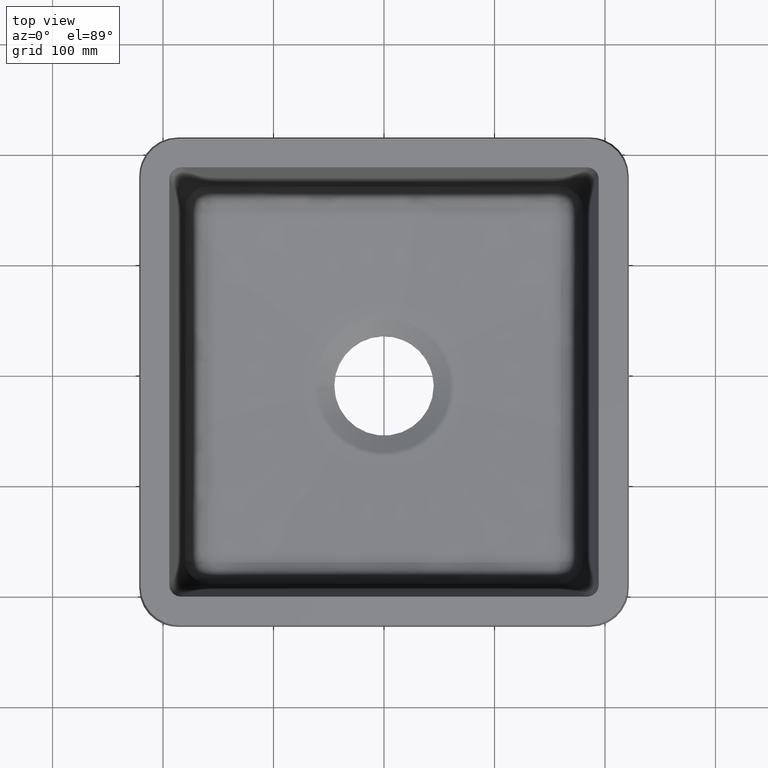
[diagram: clean part render]
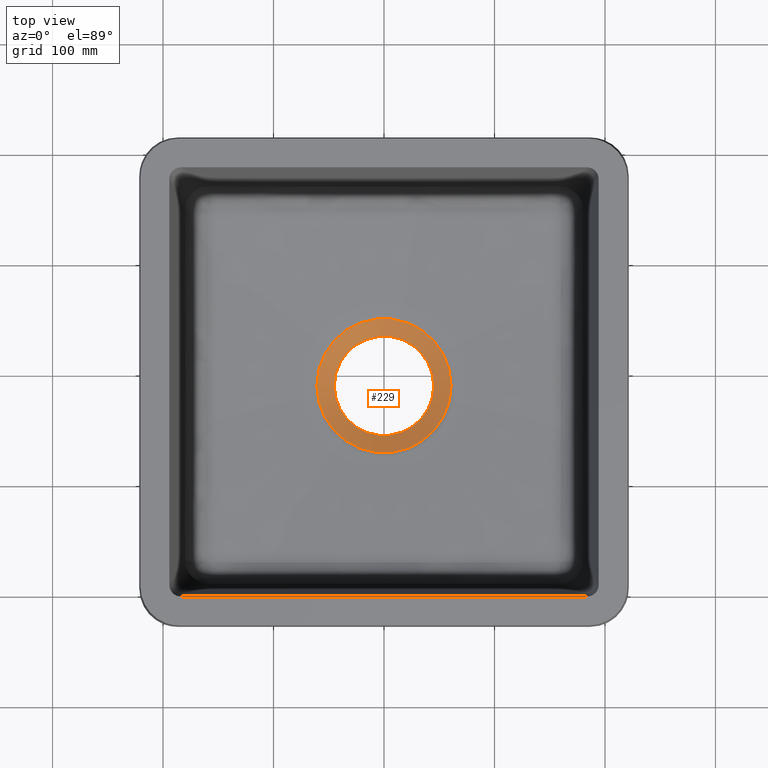
[diagram: same view with one face highlighted and labeled with its STEP entity id]
A machine part, top view. The second image highlights one B-rep face of the part: STEP entity #229.
In plain terms, the highlighted conical surface has half-angle 60 deg.
Its self-contained STEP definition (entity closure, byte-faithful):
#43=CONICAL_SURFACE('',#1388,45.,59.9999999999999);
#164=FACE_BOUND('',#442,.T.);
#165=FACE_BOUND('',#443,.T.);
#229=ADVANCED_FACE('',(#164,#165),#43,.F.);
#442=EDGE_LOOP('',(#801));
#443=EDGE_LOOP('',(#802));
#497=CIRCLE('',#1384,45.);
#498=CIRCLE('',#1387,60.7210063281648);
#801=ORIENTED_EDGE('',*,*,#1180,.F.);
#802=ORIENTED_EDGE('',*,*,#1171,.T.);
#995=VERTEX_POINT('',#3646);
#1004=VERTEX_POINT('',#3686);
#1171=EDGE_CURVE('',#995,#995,#497,.T.);
#1180=EDGE_CURVE('',#1004,#1004,#498,.T.);
#1384=AXIS2_PLACEMENT_3D('',#3645,#1528,#1529);
#1387=AXIS2_PLACEMENT_3D('',#3685,#1538,#1539);
#1388=AXIS2_PLACEMENT_3D('',#3687,#1540,#1541);
#1528=DIRECTION('',(0.,0.,-1.));
#1529=DIRECTION('',(1.,0.,0.));
#1538=DIRECTION('',(0.,0.,-1.));
#1539=DIRECTION('',(-1.,0.,0.));
#1540=DIRECTION('',(0.,0.,1.));
#1541=DIRECTION('',(-1.,0.,-3.12377963504605E-17));
#3645=CARTESIAN_POINT('',(0.,-209.,-203.));
#3646=CARTESIAN_POINT('',(45.,-209.,-203.));
#3685=CARTESIAN_POINT('',(0.,-209.,-193.923472764502));
#3686=CARTESIAN_POINT('',(-60.7210063281648,-209.,-193.923472764502));
#3687=CARTESIAN_POINT('',(0.,-209.,-203.));